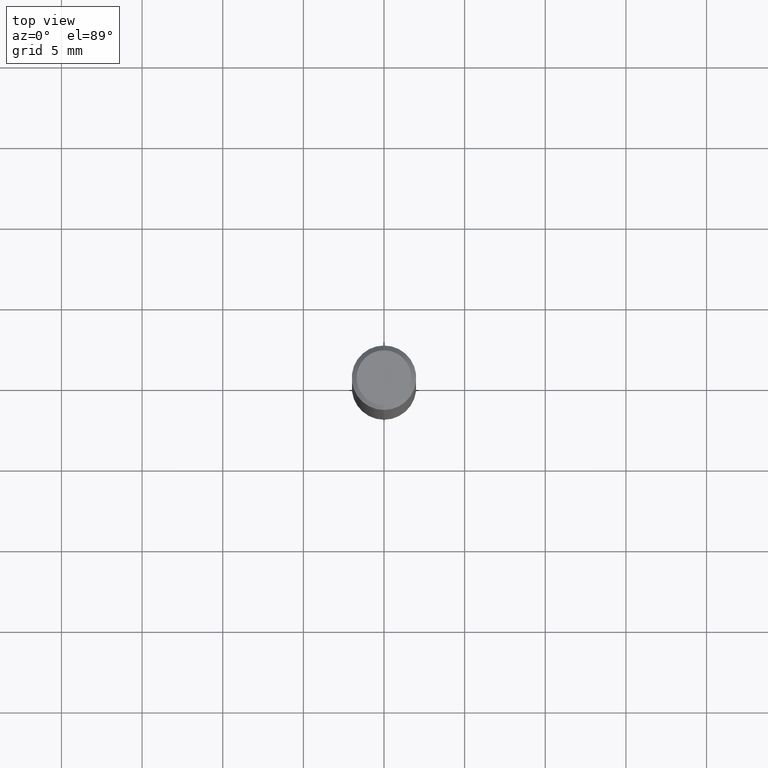
[diagram: clean part render]
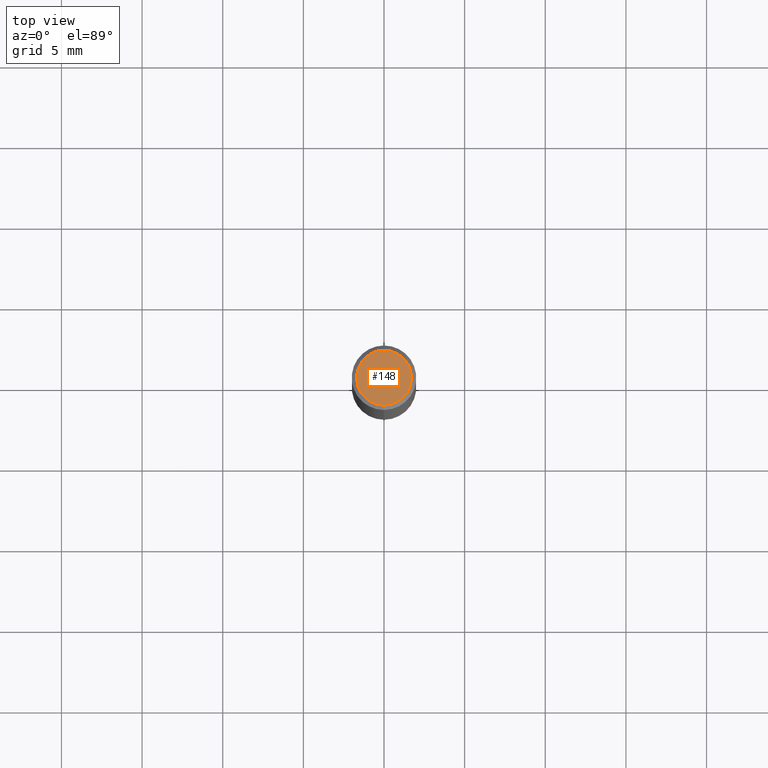
[diagram: same view with one face highlighted and labeled with its STEP entity id]
A machine part, top view. The second image highlights one B-rep face of the part: STEP entity #148.
In plain terms, the highlighted planar face has unit normal (-0, 0, 1).
Its self-contained STEP definition (entity closure, byte-faithful):
#112=VERTEX_POINT('',#255);
#140=VERTEX_POINT('',#287);
#148=ADVANCED_FACE('',(#297),#298,.T.);
#162=EDGE_CURVE('',#112,#140,#312,.T.);
#180=EDGE_CURVE('',#140,#112,#333,.T.);
#255=CARTESIAN_POINT('',(0.0,1.7,0.0));
#287=CARTESIAN_POINT('',(2.08183080149804E-016,-1.7,0.0));
#297=FACE_OUTER_BOUND('',#463,.T.);
#298=PLANE('',#464);
#312=CIRCLE('',#483,1.7);
#333=CIRCLE('',#511,1.7);
#463=EDGE_LOOP('',(#636,#637));
#464=AXIS2_PLACEMENT_3D('',#638,#639,#640);
#483=AXIS2_PLACEMENT_3D('',#648,#649,#650);
#511=AXIS2_PLACEMENT_3D('',#680,#681,#682);
#636=ORIENTED_EDGE('',*,*,#162,.F.);
#637=ORIENTED_EDGE('',*,*,#180,.F.);
#638=CARTESIAN_POINT('',(0.0,0.85,0.0));
#639=DIRECTION('',(-0.0,0.0,1.0));
#640=DIRECTION('',(0.0,-1.0,0.0));
#648=CARTESIAN_POINT('',(0.0,0.0,0.0));
#649=DIRECTION('',(0.0,0.0,-1.0));
#650=DIRECTION('',(0.0,1.0,0.0));
#680=CARTESIAN_POINT('',(0.0,0.0,0.0));
#681=DIRECTION('',(0.0,0.0,-1.0));
#682=DIRECTION('',(0.0,1.0,0.0));